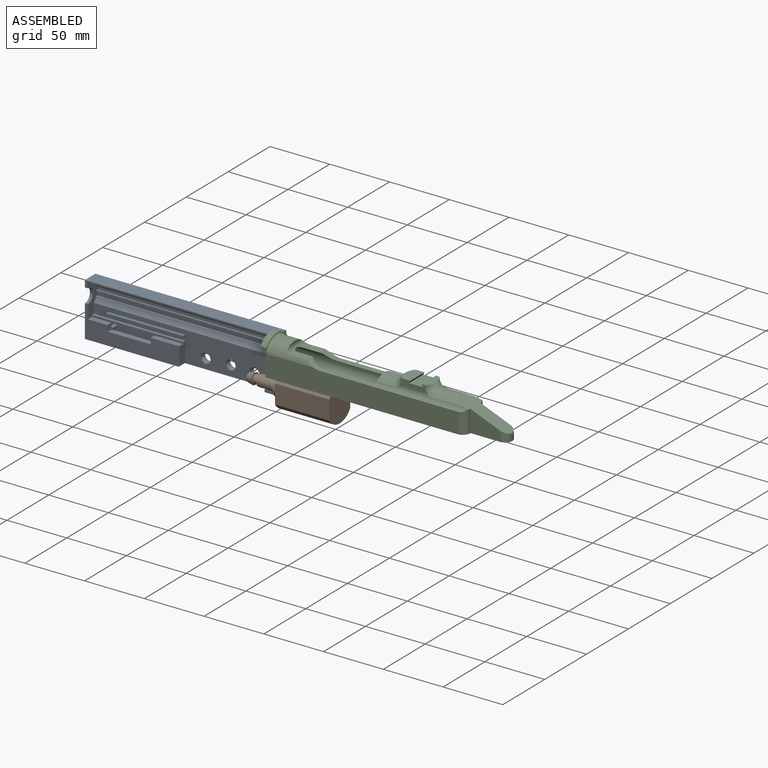
[diagram: assembled view]
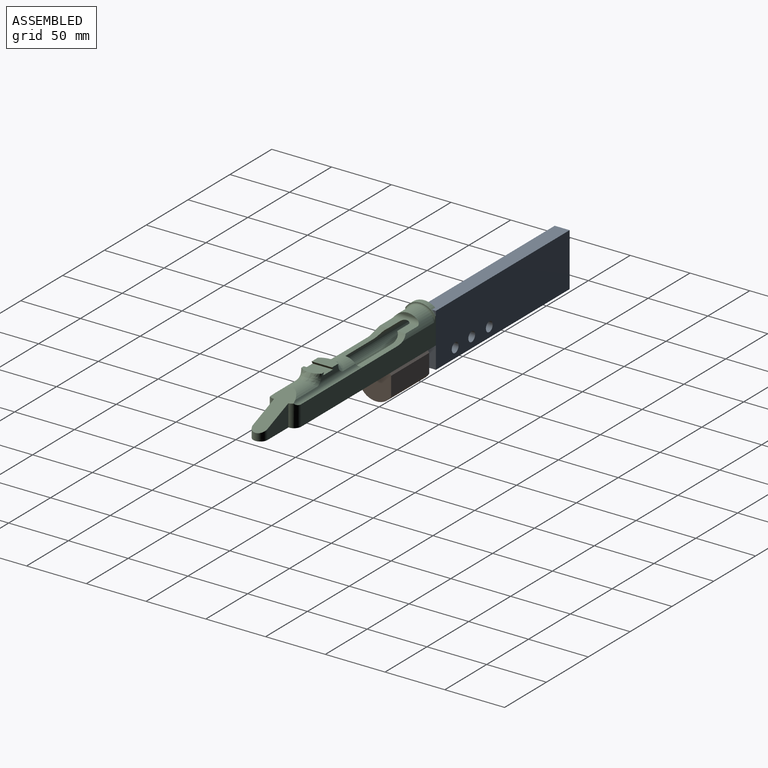
[diagram: assembled view, second angle]
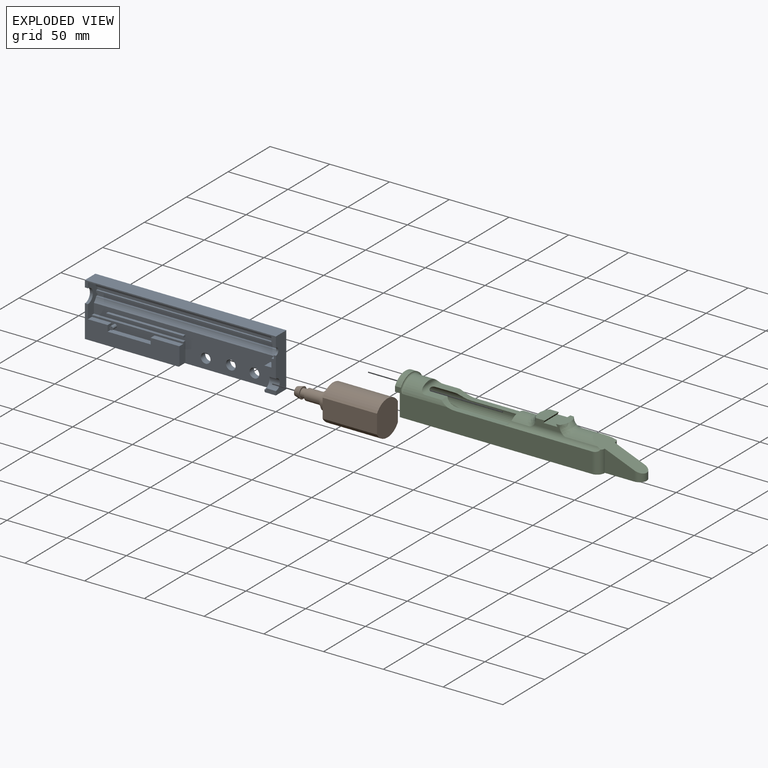
[diagram: exploded view]
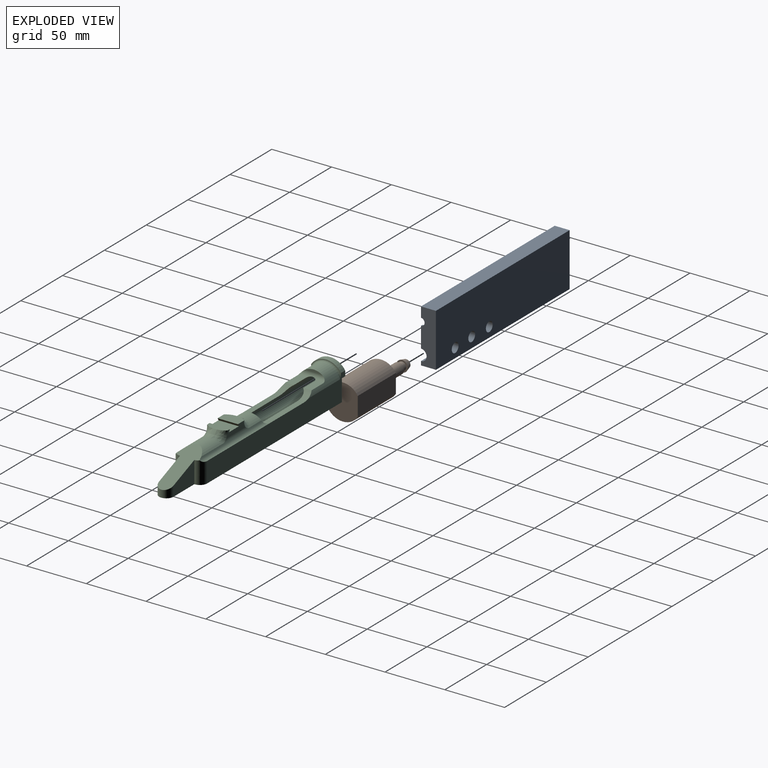
[diagram: exploded view, second angle]
ASSEMBLY  parts=3 mates=2
PART A: 50 faces, bbox 159.8x12.5x44.6 mm
  f0: plane 153.5x25.22mm, normal (0,-1,0), area 2197.1mm2, adj f4,f6,f7,f8,f9,f18,f19,f20
  f1: plane 24x4.7mm, normal (0,0,1), area 112.8mm2, adj f10,f17,f36,f46
  f2: plane 9.5x3.3mm, normal (0,-1,0), area 29.5mm2, adj f6,f13,f37,f38,f41,f42,f43
  f3: plane 17.3x9.5mm, normal (0,-1,0), area 100mm2, adj f13,f30,f32,f33,f34,f37,f41,f42
  f4: plane 64.5x2.5mm, normal (0,0,1), area 161.2mm2, adj f0,f5,f35,f40
  f5: plane 64.5x1.5mm, normal (0,-1,0), area 96.7mm2, adj f4,f19,f35,f40
  f6: plane 159.78x12.5mm, normal (0,0,-1), area 1476.8mm2, adj f0,f2,f10,f12,f13,f15,f38,f39
  f7: cylinder r=4.05mm len=8.1mm, axis (0,-1,0), area 134.9mm2, adj f0,f15
  f8: cylinder r=4.05mm len=8.1mm, axis (0,-1,0), area 134.9mm2, adj f0,f15
  f9: cylinder r=4.05mm len=8.1mm, axis (0,-1,0), area 134.9mm2, adj f0,f15
  f10: plane 79x27mm, normal (0,-1,0), area 1080.8mm2, adj f1,f6,f12,f16,f29,f31,f36,f39
  f11: plane 159.78x8.6mm, normal (0,-1,0), area 194mm2, adj f12,f13,f14,f28,f29,f30,f31,f32
  f12: plane 44.6x12.5mm, normal (-1,0,0), area 501mm2, adj f6,f10,f11,f14,f15,f31
  f13: plane 44.6x12.5mm, normal (1,0,0), area 508.7mm2, adj f2,f3,f6,f11,f14,f15,f32,f43
  f14: plane 159.78x12.5mm, normal (0,0,1), area 1997.2mm2, adj f11,f12,f13,f15
  f15: plane 159.78x44.6mm, normal (0,1,0), area 6971.5mm2, adj f6,f7,f8,f9,f12,f13,f14
  f16: plane 16.5x4.7mm, normal (0,0,1), area 77.6mm2, adj f10,f17,f29,f44
  f17: plane 76.5x6.5mm, normal (0,-1,0), area 287.7mm2, adj f1,f16,f18,f29,f36,f44,f45,f46
  f18: plane 76.5x2.5mm, normal (0,0,1), area 191.2mm2, adj f0,f17,f29,f36
  f19: plane 64.5x2.5mm, normal (0,0,-1), area 161.2mm2, adj f0,f5,f35,f40
  f20: cylinder r=10.6mm len=153.5mm, axis (1,0,0), area 760.7mm2, adj f0,f21,f29,f30
  f21: plane 153.5x1.37mm, normal (0,0,1), area 209.8mm2, adj f20,f22,f29,f30
  f22: plane 153.5x2.8mm, normal (0,-1,0), area 429.8mm2, adj f21,f23,f29,f30
  f23: plane 153.5x1.5mm, normal (0,0,-1), area 230.2mm2, adj f22,f24,f29,f30
  f24: plane 153.5x1.8mm, normal (0,-1,0), area 276.3mm2, adj f23,f25,f29,f30
  f25: plane 153.5x1.5mm, normal (0,0,1), area 230.2mm2, adj f24,f26,f29,f30
  f26: plane 153.5x2.8mm, normal (0,-1,0), area 429.8mm2, adj f25,f27,f29,f30
  f27: plane 153.5x1.37mm, normal (0,0,-1), area 209.8mm2, adj f26,f28,f29,f30
  f28: cylinder r=10.6mm len=153.5mm, axis (1,0,0), area 1975.7mm2, adj f11,f27,f29,f30
  f29: plane 28x11.3mm, normal (1,0,0), area 175.6mm2, adj f0,f10,f11,f16,f17,f18,f20,f21
  f30: plane 23.5x11.3mm, normal (-1,0,0), area 147mm2, adj f0,f3,f11,f20,f21,f22,f23,f24
  f31: cylinder r=6mm len=12mm, axis (1,0,0), area 47.1mm2, adj f10,f11,f12,f29
  f32: cylinder r=3mm len=6mm, axis (-1,0,0), area 16.8mm2, adj f3,f11,f13,f34
  f33: cylinder r=6mm len=12mm, axis (-1,0,0), area 37.7mm2, adj f3,f11,f30,f34
  f34: plane 12x6mm, normal (-1,0,0), area 42.4mm2, adj f3,f11,f32,f33
  f35: plane 2.5x1.5mm, normal (1,0,0), area 3.7mm2, adj f0,f4,f5,f19
  f36: plane 16.6x7.2mm, normal (1,0,0), area 112.5mm2, adj f0,f1,f10,f17,f18,f39
  f37: plane 19.6x7.2mm, normal (-1,0,0), area 84.6mm2, adj f0,f2,f3,f38,f41,f49
  f38: plane 7.2x0.5mm, normal (-0.71,0,-0.71), area 5.1mm2, adj f0,f2,f6,f37
  f39: plane 7.2x0.5mm, normal (0.71,0,-0.71), area 5.1mm2, adj f0,f6,f10,f36
  f40: plane 2.5x1.5mm, normal (-1,0,0), area 3.7mm2, adj f0,f4,f5,f19
  f41: cylinder r=6mm len=12mm, axis (-1,0,0), area 24.5mm2, adj f2,f3,f37,f42
  f42: plane 12x6mm, normal (-1,0,0), area 21.8mm2, adj f2,f3,f41,f43
  f43: cylinder r=4.7mm len=9.4mm, axis (-1,0,0), area 121.1mm2, adj f2,f3,f13,f42
  f44: plane 5x4.7mm, normal (1,0,0), area 23.5mm2, adj f10,f16,f17,f45
  f45: plane 36x4.7mm, normal (0,0,1), area 169.2mm2, adj f10,f17,f44,f46
  f46: plane 5x4.7mm, normal (-1,0,0), area 23.5mm2, adj f1,f10,f17,f45
  f47: cylinder r=1.5mm len=4.7mm, axis (0,-1,0), area 44.3mm2, adj f17,f48
  f48: plane 3x3mm, normal (0,-1,0), area 7.1mm2, adj f47
  f49: plane 7.2x5.72mm, normal (0,0,1), area 41.2mm2, adj f0,f3,f30,f37
PART B: 16 faces, bbox 75.8x25x29.6 mm
  f0: cylinder r=14.8mm len=45.5mm, axis (1,0,0), area 1354.6mm2, adj f1,f2,f14,f15
  f1: plane 29.6x25mm, normal (1,0,0), area 638.7mm2, adj f0,f3,f14,f15
  f2: plane 29.6x25mm, normal (-1,0,0), area 450mm2, adj f0,f3,f4,f14,f15
  f3: cylinder r=14.8mm len=45.5mm, axis (1,0,0), area 1354.6mm2, adj f1,f2,f14,f15
  f4: cylinder r=7.75mm len=15.5mm, axis (1,0,0), area 267.8mm2, adj f2,f5
  f5: plane 15.5x15.5mm, normal (-1,0,0), area 93.7mm2, adj f4,f6
  f6: cylinder r=5.5mm len=11mm, axis (1,0,0), area 86.4mm2, adj f5,f7
  f7: plane 11x11mm, normal (-1,0,0), area 27.1mm2, adj f6,f8
  f8: cylinder r=4.65mm len=13mm, axis (1,0,0), area 379.8mm2, adj f7,f9
  f9: plane 9.3x9.3mm, normal (-1,0,0), area 29.4mm2, adj f8,f10
  f10: cylinder r=3.5mm len=7mm, axis (1,0,0), area 94.6mm2, adj f9,f11
  f11: plane 9.5x9.5mm, normal (1,0,0), area 32.4mm2, adj f10,f12
  f12: cone r=3.5mm half-angle=14deg, axis (1,0,0), area 133.6mm2, adj f11,f13
  f13: plane 7x7mm, normal (-1,0,0), area 38.5mm2, adj f12
  f14: plane 45.5x15.85mm, normal (0,1,0), area 721.1mm2, adj f0,f1,f2,f3
  f15: plane 45.5x15.85mm, normal (0,-1,0), area 721.1mm2, adj f0,f1,f2,f3
PART C: 52 faces, bbox 206.7x37.2x36.1 mm
  f0: plane 41x4.9mm, normal (0,0,1), area 200.9mm2, adj f4,f7,f11,f45
  f1: plane 41x4.9mm, normal (0,0,1), area 200.9mm2, adj f5,f6,f14,f45
  f2: plane 14x7.08mm, normal (0,0,1), area 99.1mm2, adj f5,f8,f19,f45
  f3: plane 14x7.08mm, normal (0,0,1), area 99.1mm2, adj f4,f8,f19,f45
  f4: cylinder r=18.25mm len=12mm, axis (0,-1,0), area 83.3mm2, adj f0,f3,f11,f19,f45
  f5: cylinder r=18.25mm len=12mm, axis (0,-1,0), area 83.3mm2, adj f1,f2,f14,f19,f45
  f6: cylinder r=4mm len=7.84mm, axis (0,1,0), area 22.1mm2, adj f1,f17,f18,f23,f45
  f7: cylinder r=4mm len=7.84mm, axis (0,1,0), area 22.1mm2, adj f0,f10,f18,f23,f45
  f8: cylinder r=4mm len=21.91mm, axis (0,-1,0), area 94.7mm2, adj f2,f3,f19,f22,f45
  f9: plane 17.5x6.5mm, normal (0,0,1), area 85.8mm2, adj f13,f24,f26,f27,f29,f44
  f10: cylinder r=5.12mm len=79.07mm, axis (1,0,0), area 419.7mm2, adj f7,f11,f16,f18,f26,f30,f31,f34
  f11: plane 165.54x22.96mm, normal (0,1,0), area 2805mm2, adj f0,f4,f10,f19,f20,f21,f41,f47
  f12: cylinder r=13.54mm len=0.91mm, axis (0,0,-1), area 0.4mm2, adj f15,f26,f31
  f13: cylinder r=13.54mm len=0.91mm, axis (0,0,-1), area 0.4mm2, adj f9,f27,f28
  f14: plane 165.54x22.96mm, normal (0,-1,0), area 2805mm2, adj f1,f5,f17,f19,f20,f21,f40,f47
  f15: plane 17.5x11mm, normal (0,0,1), area 162.3mm2, adj f12,f25,f26,f27,f32,f42
  f16: cylinder r=13.08mm len=26.28mm, axis (1,0,0), area 339.7mm2, adj f10,f17,f28,f29,f30,f34
  f17: cylinder r=5.12mm len=79.07mm, axis (1,0,0), area 419.7mm2, adj f6,f14,f16,f18,f27,f28,f33,f34
  f18: cylinder r=13.08mm len=17.81mm, axis (1,0,0), area 222.6mm2, adj f6,f7,f10,f17,f23,f31,f32,f33
  f19: cylinder r=13mm len=37.34mm, axis (-1,0,0), area 634.5mm2, adj f2,f3,f4,f5,f8,f11,f14,f22
  f20: plane 197.9x25mm, normal (0,0,-1), area 4514.9mm2, adj f11,f14,f21,f35,f36,f37,f38,f39
  f21: plane 27.5x25mm, normal (-1,0,0), area 424.5mm2, adj f11,f14,f20,f45,f47
  f22: plane 13.86x2mm, normal (1,0,0), area 18.8mm2, adj f8,f19
  f23: plane 15.38x2.5mm, normal (-1,0,0), area 16.7mm2, adj f6,f7,f18,f45
  f24: cylinder r=13.54mm len=0.91mm, axis (0,0,-1), area 0.4mm2, adj f9,f26,f30
  f25: cylinder r=13.54mm len=0.91mm, axis (0,0,-1), area 0.4mm2, adj f15,f27,f33
  f26: plane 23.82x6.21mm, normal (0,1,0), area 92.8mm2, adj f9,f10,f12,f15,f24,f30,f31,f42
  f27: plane 23.82x6.21mm, normal (0,-1,0), area 92.8mm2, adj f9,f13,f15,f17,f25,f28,f33,f42
  f28: bspline ~9.21x9.21mm, area 21mm2, adj f13,f16,f17,f27,f29
  f29: bspline ~17.34x10.24mm, area 136.9mm2, adj f9,f16,f28,f30
  f30: bspline ~9.42x9.41mm, area 21.1mm2, adj f10,f16,f24,f26,f29
  f31: bspline ~9.21x9.21mm, area 21mm2, adj f10,f12,f18,f26,f32
  f32: bspline ~17.34x10.24mm, area 136.9mm2, adj f15,f18,f31,f33
  f33: bspline ~9.42x9.41mm, area 21.1mm2, adj f17,f18,f25,f27,f32
  f34: plane 48.67x24.18mm, normal (0.37,0,0.93), area 580.8mm2, adj f10,f16,f17,f35,f36,f37,f38,f39
  f35: cylinder r=6mm len=12mm, axis (0,0,1), area 158.8mm2, adj f20,f34,f36,f39
  f36: plane 24.9x18.33mm, normal (0,-1,0), area 333.1mm2, adj f20,f34,f35,f37
  f37: plane 18.33x0.5mm, normal (1,0,0), area 9.2mm2, adj f20,f34,f36,f40
  f38: plane 18.33x0.5mm, normal (1,0,0), area 9.2mm2, adj f20,f34,f39,f41
  f39: plane 24.9x18.33mm, normal (0,1,0), area 333.1mm2, adj f20,f34,f35,f38
  f40: cylinder r=6mm len=18.7mm, axis (0,0,1), area 170.5mm2, adj f14,f17,f20,f34,f37
  f41: cylinder r=6mm len=18.7mm, axis (0,0,-1), area 170.5mm2, adj f10,f11,f20,f34,f38
  f42: plane 17x2mm, normal (0.87,0,-0.5), area 39.3mm2, adj f15,f26,f27,f43
  f43: plane 17x11.81mm, normal (0,0,1), area 200.8mm2, adj f26,f27,f42,f44
  f44: plane 17x2mm, normal (-0.87,0,-0.5), area 39.3mm2, adj f9,f26,f27,f43
  f45: cylinder r=8mm len=100mm, axis (-1,0,0), area 3862.6mm2, adj f0,f1,f2,f3,f4,f5,f6,f7
  f46: plane 16x16mm, normal (-1,0,0), area 201.1mm2, adj f45
  f47: cylinder r=13mm len=25mm, axis (1,0,0), area 134.4mm2, adj f11,f14,f21,f49
  f48: cylinder r=14.8mm len=25mm, axis (1,0,0), area 148.9mm2, adj f11,f14,f49,f50
  f49: plane 25x11.23mm, normal (-1,0,0), area 56.3mm2, adj f11,f14,f47,f48
  f50: plane 25x7.45mm, normal (1,0,0), area 9mm2, adj f11,f14,f48,f51
  f51: torus R=14.5mm, axis (-1,0,0), area 74.3mm2, adj f11,f14,f19,f50
PLACE A t=(-63.78,0,0)mm
PLACE B t=(53.5,0,-25)mm
PLACE C at identity
MATE fastened B.f0 <-> A.f43  axis (-1,0,0) through (0,0,-25)mm
MATE fastened A.f32 <-> C.f19  axis (1,0,0) through (0,0,0)mm
